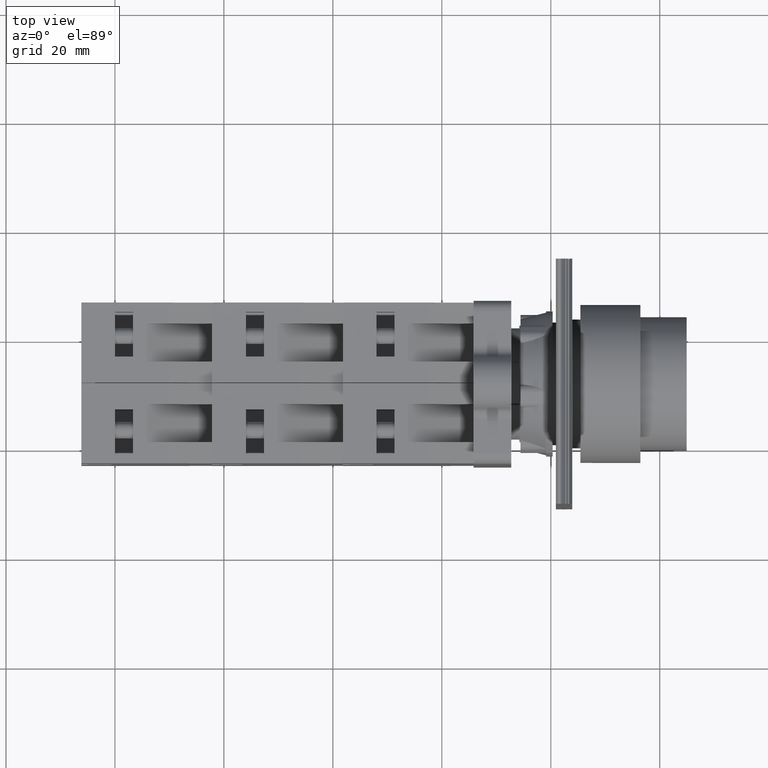
[diagram: clean part render]
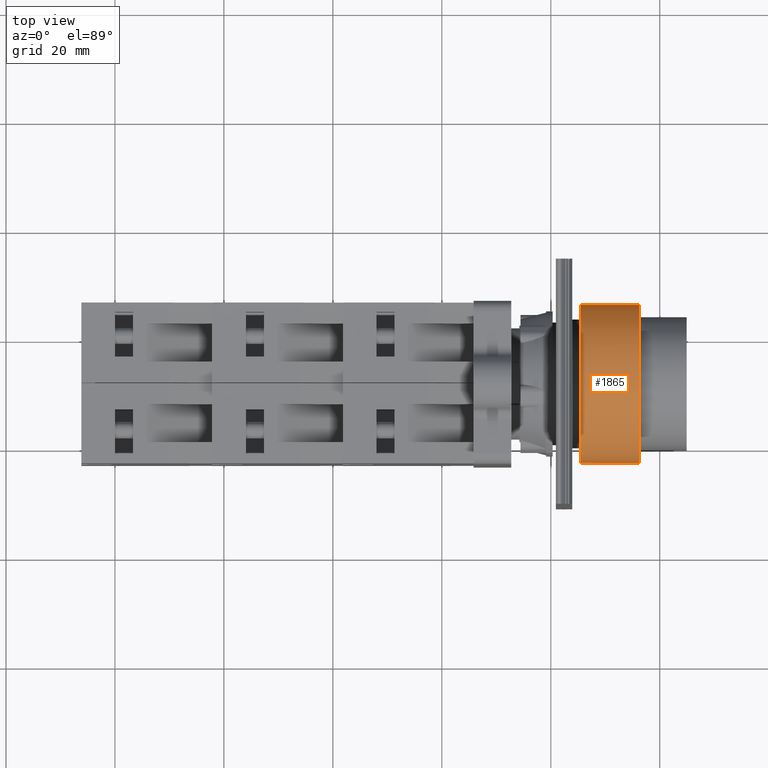
[diagram: same view with one face highlighted and labeled with its STEP entity id]
A machine part, top view. The second image highlights one B-rep face of the part: STEP entity #1865.
In plain terms, the highlighted cylindrical surface (bore or boss wall) has radius 14.5 mm, axis along (1, 0, 0).
Its self-contained STEP definition (entity closure, byte-faithful):
#1684=CARTESIAN_POINT('',(-10.751189470786498,5.102408610866585,-13.776872313685111));
#1685=VERTEX_POINT('',#1684);
#1686=CARTESIAN_POINT('',(-10.751189470786498,0.580485430137330,0.0));
#1687=DIRECTION('',(1.0,0.0,0.0));
#1688=DIRECTION('',(0.0,1.0,0.0));
#1689=AXIS2_PLACEMENT_3D('',#1686,#1687,#1688);
#1690=CIRCLE('',#1689,14.499999999999996);
#1691=EDGE_CURVE('',#1685,#1685,#1690,.T.);
#1846=CARTESIAN_POINT('',(-5.301189470786496,0.580485430137330,0.0));
#1847=DIRECTION('',(1.0,0.0,0.0));
#1848=DIRECTION('',(0.0,1.0,0.0));
#1849=AXIS2_PLACEMENT_3D('',#1846,#1847,#1848);
#1850=CYLINDRICAL_SURFACE('',#1849,14.499999999999996);
#1851=CARTESIAN_POINT('',(0.148810529213503,15.080485430137330,0.0));
#1852=VERTEX_POINT('',#1851);
#1853=CARTESIAN_POINT('',(0.148810529213503,0.580485430137330,0.0));
#1854=DIRECTION('',(1.0,0.0,0.0));
#1855=DIRECTION('',(0.0,1.0,0.0));
#1856=AXIS2_PLACEMENT_3D('',#1853,#1854,#1855);
#1857=CIRCLE('',#1856,14.500000000000000);
#1858=EDGE_CURVE('',#1852,#1852,#1857,.T.);
#1859=ORIENTED_EDGE('',*,*,#1858,.F.);
#1860=EDGE_LOOP('',(#1859));
#1861=FACE_OUTER_BOUND('',#1860,.T.);
#1862=ORIENTED_EDGE('',*,*,#1691,.T.);
#1863=EDGE_LOOP('',(#1862));
#1864=FACE_BOUND('',#1863,.T.);
#1865=ADVANCED_FACE('',(#1861,#1864),#1850,.T.);